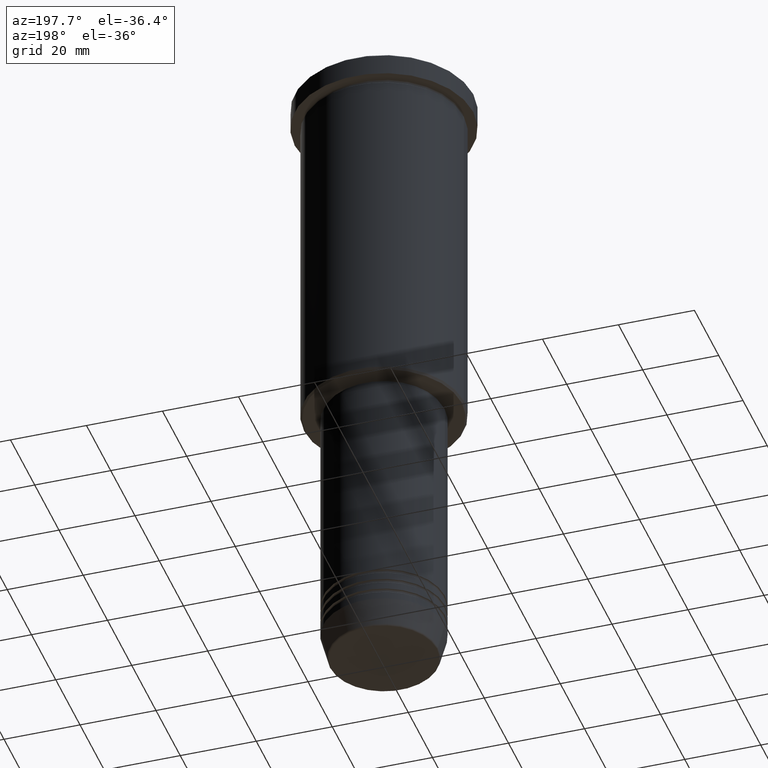
[diagram: clean part render]
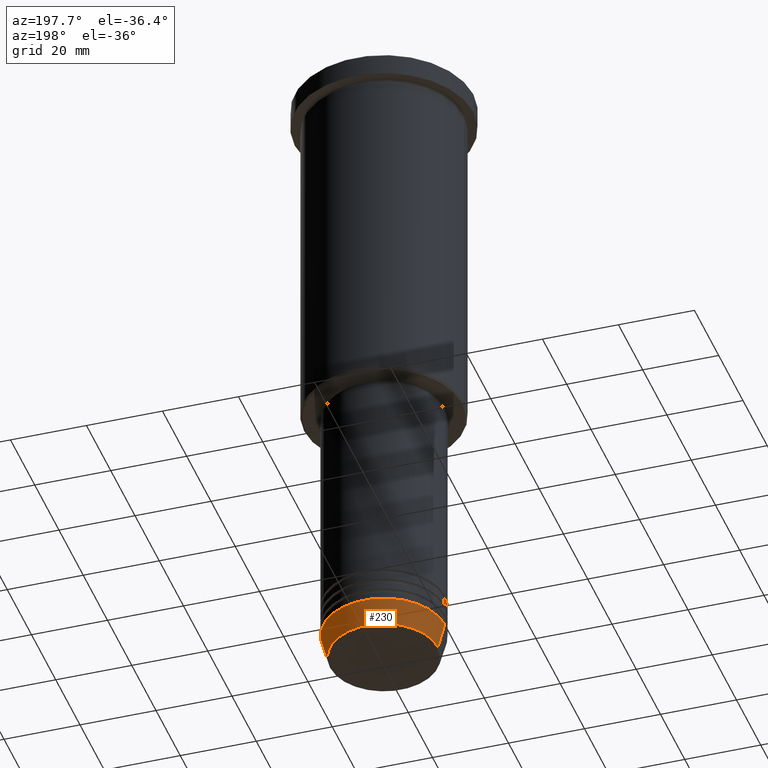
[diagram: same view with one face highlighted and labeled with its STEP entity id]
A machine part, auxiliary view. The second image highlights one B-rep face of the part: STEP entity #230.
In plain terms, the highlighted conical surface has half-angle 15 deg.
Its self-contained STEP definition (entity closure, byte-faithful):
#37 = DIRECTION ( 'NONE',  ( -0.000000000000000000, -0.000000000000000000, 1.000000000000000000 ) ) ;
#66 = DIRECTION ( 'NONE',  ( -0.2588190451025213501, 3.169619151431772337E-17, 0.9659258262890680902 ) ) ;
#78 = DIRECTION ( 'NONE',  ( 1.000000000000000000, 0.000000000000000000, 0.000000000000000000 ) ) ;
#82 = ORIENTED_EDGE ( 'NONE', *, *, #301, .T. ) ;
#108 = ORIENTED_EDGE ( 'NONE', *, *, #306, .T. ) ;
#119 = ORIENTED_EDGE ( 'NONE', *, *, #942, .F. ) ;
#123 = LINE ( 'NONE', #677, #601 ) ;
#129 = FACE_OUTER_BOUND ( 'NONE', #867, .T. ) ;
#131 = DIRECTION ( 'NONE',  ( 0.2588190451025213501, 0.000000000000000000, 0.9659258262890680902 ) ) ;
#132 = EDGE_CURVE ( 'NONE', #1012, #1146, #123, .T. ) ;
#173 = DIRECTION ( 'NONE',  ( 1.000000000000000000, 0.000000000000000000, 0.000000000000000000 ) ) ;
#201 = CARTESIAN_POINT ( 'NONE',  ( 0.000000000000000000, 0.000000000000000000, -164.0000000000000000 ) ) ;
#230 = ADVANCED_FACE ( 'NONE', ( #129 ), #401, .T. ) ;
#274 = DIRECTION ( 'NONE',  ( -0.000000000000000000, -0.000000000000000000, 1.000000000000000000 ) ) ;
#284 = CIRCLE ( 'NONE', #738, 16.00000000000000000 ) ;
#289 = AXIS2_PLACEMENT_3D ( 'NONE', #664, #37, #512 ) ;
#297 = VERTEX_POINT ( 'NONE', #1079 ) ;
#301 = EDGE_CURVE ( 'NONE', #297, #315, #452, .T. ) ;
#306 = EDGE_CURVE ( 'NONE', #1012, #297, #1159, .T. ) ;
#315 = VERTEX_POINT ( 'NONE', #903 ) ;
#388 = CARTESIAN_POINT ( 'NONE',  ( 16.00000000000000000, 0.000000000000000000, -164.0000000000000000 ) ) ;
#401 = CONICAL_SURFACE ( 'NONE', #289, 16.00000000000000000, 0.2617993877991500740 ) ;
#452 = LINE ( 'NONE', #621, #855 ) ;
#461 = ORIENTED_EDGE ( 'NONE', *, *, #132, .F. ) ;
#512 = DIRECTION ( 'NONE',  ( 1.000000000000000000, 0.000000000000000000, 0.000000000000000000 ) ) ;
#601 = VECTOR ( 'NONE', #131, 1000.000000000000000 ) ;
#607 = CARTESIAN_POINT ( 'NONE',  ( 0.000000000000000000, 0.000000000000000000, -170.6294095225512706 ) ) ;
#621 = CARTESIAN_POINT ( 'NONE',  ( -16.00000000000000000, 1.959434878635765131E-15, -164.0000000000000000 ) ) ;
#626 = DIRECTION ( 'NONE',  ( -0.000000000000000000, -0.000000000000000000, 1.000000000000000000 ) ) ;
#664 = CARTESIAN_POINT ( 'NONE',  ( 0.000000000000000000, 0.000000000000000000, -164.0000000000000000 ) ) ;
#677 = CARTESIAN_POINT ( 'NONE',  ( 16.00000000000000000, 0.000000000000000000, -164.0000000000000000 ) ) ;
#713 = AXIS2_PLACEMENT_3D ( 'NONE', #607, #626, #78 ) ;
#738 = AXIS2_PLACEMENT_3D ( 'NONE', #201, #274, #173 ) ;
#855 = VECTOR ( 'NONE', #66, 1000.000000000000000 ) ;
#867 = EDGE_LOOP ( 'NONE', ( #108, #82, #119, #461 ) ) ;
#903 = CARTESIAN_POINT ( 'NONE',  ( -16.00000000000000000, 1.959434878635765131E-15, -164.0000000000000000 ) ) ;
#914 = CARTESIAN_POINT ( 'NONE',  ( 14.22365507213719660, 0.000000000000000000, -170.6294095225512706 ) ) ;
#942 = EDGE_CURVE ( 'NONE', #1146, #315, #284, .T. ) ;
#1012 = VERTEX_POINT ( 'NONE', #914 ) ;
#1079 = CARTESIAN_POINT ( 'NONE',  ( -14.22365507213719660, 1.850665122131324126E-15, -170.6294095225512706 ) ) ;
#1146 = VERTEX_POINT ( 'NONE', #388 ) ;
#1159 = CIRCLE ( 'NONE', #713, 14.22365507213719660 ) ;